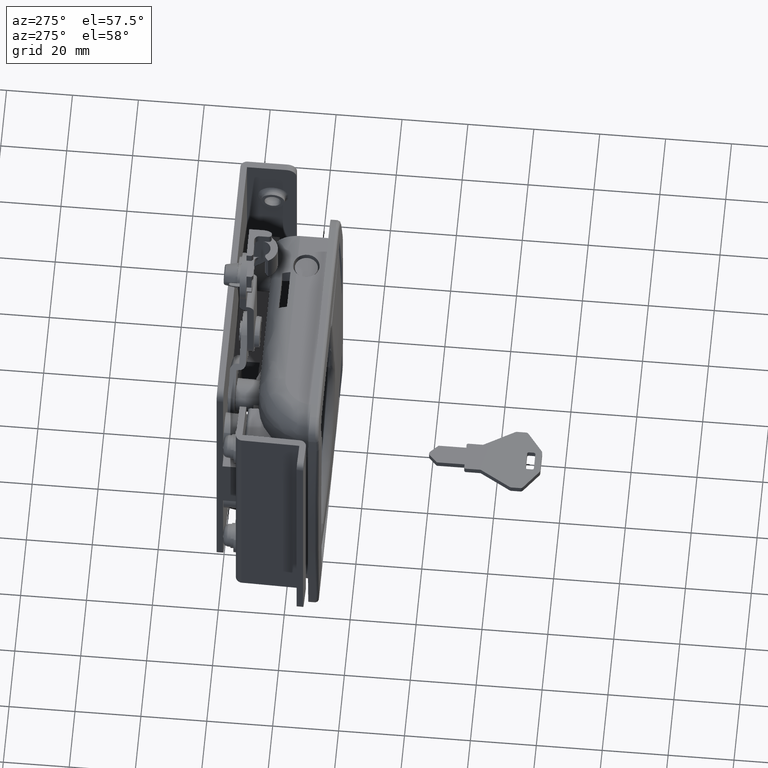
[diagram: clean part render]
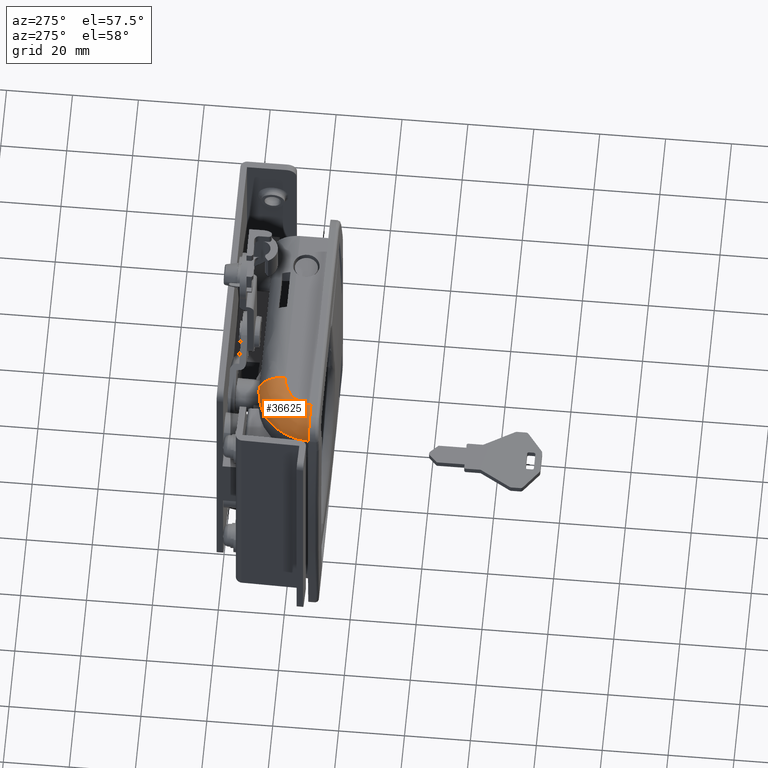
[diagram: same view with one face highlighted and labeled with its STEP entity id]
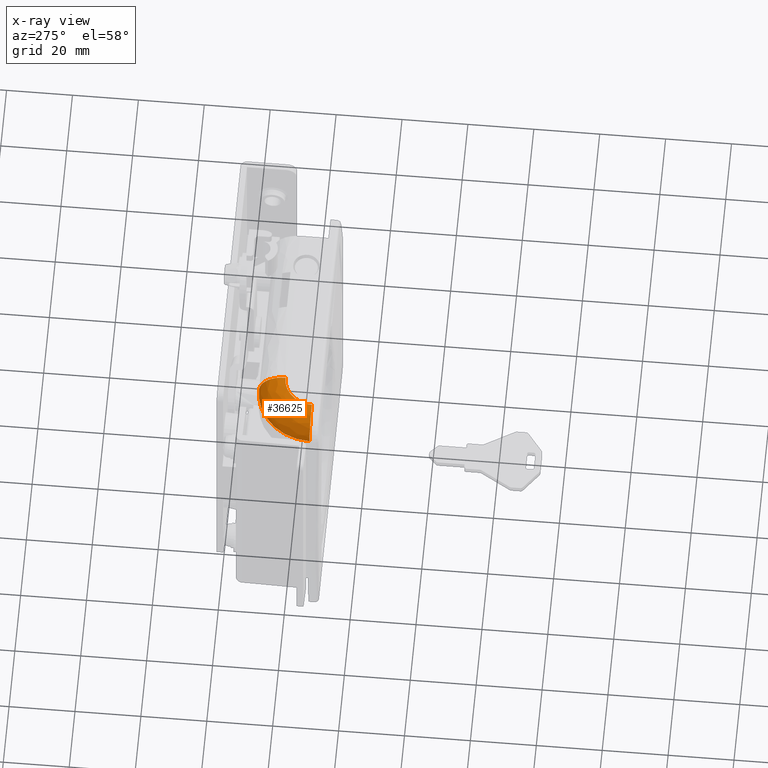
[diagram: x-ray of the same camera — body ghosted, the highlighted face saturated]
A machine part, auxiliary view. The second image highlights one B-rep face of the part: STEP entity #36625.
The next image is the same camera in x-ray: the body ghosted, the highlighted face saturated — about 0% of this face is hidden behind the body in this view.
In plain terms, the highlighted face is a freeform B-spline surface patch.
Its self-contained STEP definition (entity closure, byte-faithful):
#33400=CARTESIAN_POINT('',(18.002176511299400,-12.199999999999999,-37.499699999999997));
#33401=VERTEX_POINT('',#33400);
#36542=CARTESIAN_POINT('',(26.431872487682618,-29.686133000441220,-45.480334829208047));
#36543=CARTESIAN_POINT('',(26.983819367452057,-20.115204083155771,-45.480334829208061));
#36544=CARTESIAN_POINT('',(17.419817099258534,-20.776404742416876,-45.480334829208061));
#36545=CARTESIAN_POINT('',(35.593248329597230,-30.214461321969910,-46.119998836651511));
#36546=CARTESIAN_POINT('',(36.745049916405492,-10.241867004988595,-46.119998836651526));
#36547=CARTESIAN_POINT('',(16.786910116168045,-11.621659148851689,-46.119998836651547));
#36548=CARTESIAN_POINT('',(34.954645096536566,-30.177633646731216,-36.943401547480256));
#36549=CARTESIAN_POINT('',(36.064633186999771,-10.930098236630501,-36.943401547480271));
#36550=CARTESIAN_POINT('',(16.831027555797483,-12.259800213554126,-36.943401547480249));
#36558=(BOUNDED_SURFACE()B_SPLINE_SURFACE(2,2,((#36542,#36545,#36548),(#36543,#36546,#36549),(#36544,#36547,#36550)),.UNSPECIFIED.,.F.,.F.,.U.)B_SPLINE_SURFACE_WITH_KNOTS((3,3),(3,3),(0.0,30.687891932063561),(0.0,14.578994850109570),.UNSPECIFIED.)GEOMETRIC_REPRESENTATION_ITEM()RATIONAL_B_SPLINE_SURFACE(((0.840469576540666,0.551537011644464,0.840469587125350),(0.556942775530934,0.365479682605076,0.556942782544946),(0.844817011368596,0.554389906359803,0.844817022008031)))REPRESENTATION_ITEM('')SURFACE());
#36559=CARTESIAN_POINT('',(26.999954014661000,-29.0,-45.499699999999997));
#36560=VERTEX_POINT('',#36559);
#36561=CARTESIAN_POINT('',(35.000999999999998,-29.0,-37.499699999999997));
#36562=VERTEX_POINT('',#36561);
#36563=CARTESIAN_POINT('',(26.999954014661000,-29.0,-45.499699999999997));
#36564=CARTESIAN_POINT('',(27.556305145680479,-29.000000000000011,-45.499811511765543));
#36565=CARTESIAN_POINT('',(28.832712534684159,-28.999999999999989,-45.366325204204713));
#36566=CARTESIAN_POINT('',(30.480847142489878,-29.0,-44.776910314488788));
#36567=CARTESIAN_POINT('',(31.812888903703531,-29.000000000000028,-43.933178130476698));
#36568=CARTESIAN_POINT('',(32.771698974751288,-28.999999999999829,-43.085499715744703));
#36569=CARTESIAN_POINT('',(33.716149055971698,-29.000000000000028,-41.949350637978391));
#36570=CARTESIAN_POINT('',(34.415720472694382,-28.999999999999730,-40.640773033599480));
#36571=CARTESIAN_POINT('',(34.891953923834500,-29.000000000000650,-39.070546734157340));
#36572=CARTESIAN_POINT('',(35.001100306263261,-28.999999999999350,-38.088796687549163));
#36573=CARTESIAN_POINT('',(35.000999999999998,-29.0,-37.499699999999997));
#36574=B_SPLINE_CURVE_WITH_KNOTS('',3,(#36563,#36564,#36565,#36566,#36567,#36568,#36569,#36570,#36571,#36572,#36573),.UNSPECIFIED.,.F.,.U.,(4,1,1,1,1,1,1,1,4),(0.000000175947406,1.669076905886884,3.829125251766932,5.203720810539627,6.381816175945271,7.658205424986733,9.621896983292510,10.800104125494711,12.567372876165690),.UNSPECIFIED.);
#36575=EDGE_CURVE('',#36560,#36562,#36574,.T.);
#36576=ORIENTED_EDGE('',*,*,#36575,.F.);
#36577=CARTESIAN_POINT('',(18.002176511299400,-20.199999999999999,-45.499699999999997));
#36578=VERTEX_POINT('',#36577);
#36579=CARTESIAN_POINT('',(18.002176511299400,-20.199999999999999,-45.499699999999997));
#36580=CARTESIAN_POINT('',(18.546585947465140,-20.199955243800989,-45.499700000000033));
#36581=CARTESIAN_POINT('',(19.708012092603379,-20.305658258537800,-45.499699999999962));
#36582=CARTESIAN_POINT('',(21.354060363574700,-20.786640717926090,-45.499700000000047));
#36583=CARTESIAN_POINT('',(22.907451431436218,-21.591179308444950,-45.499699999999962));
#36584=CARTESIAN_POINT('',(24.026165268013401,-22.469203468703672,-45.499699999999997));
#36585=CARTESIAN_POINT('',(25.052772423621480,-23.548862325513340,-45.499699999999919));
#36586=CARTESIAN_POINT('',(25.992135903599969,-24.895509974188531,-45.499699999999820));
#36587=CARTESIAN_POINT('',(26.775071541894320,-26.826837318540139,-45.499700000000729));
#36588=CARTESIAN_POINT('',(26.983967421568529,-28.274276651241799,-45.499699999999237));
#36589=CARTESIAN_POINT('',(26.999954014661000,-29.0,-45.499699999999997));
#36590=B_SPLINE_CURVE_WITH_KNOTS('',3,(#36579,#36580,#36581,#36582,#36583,#36584,#36585,#36586,#36587,#36588,#36589),.UNSPECIFIED.,.F.,.U.,(4,1,1,1,1,1,1,1,4),(0.000000159257970,1.633237100372829,3.484309806059752,5.117593231585241,6.859781105235544,7.730808414763384,9.581845338842474,11.759555220256010,13.937235469414880),.UNSPECIFIED.);
#36591=EDGE_CURVE('',#36578,#36560,#36590,.T.);
#36592=ORIENTED_EDGE('',*,*,#36591,.F.);
#36593=CARTESIAN_POINT('',(18.002176511299400,-12.199999999999999,-37.499699999999997));
#36594=CARTESIAN_POINT('',(18.002176511299339,-12.199896944281001,-38.088756407980632));
#36595=CARTESIAN_POINT('',(18.002176511299449,-12.308960685885610,-39.070445917800242));
#36596=CARTESIAN_POINT('',(18.002176511299432,-12.794621232655031,-40.671960053587611));
#36597=CARTESIAN_POINT('',(18.002176511299350,-13.612686989396380,-42.180247192470837));
#36598=CARTESIAN_POINT('',(18.002176511299499,-14.771133941734821,-43.442535340276713));
#36599=CARTESIAN_POINT('',(18.002176511299620,-15.904517911366160,-44.282989445315003));
#36600=CARTESIAN_POINT('',(18.002176511298408,-16.917394401207030,-44.824380720552071));
#36601=CARTESIAN_POINT('',(18.002176511300441,-18.334825299492749,-45.341456961064679));
#36602=CARTESIAN_POINT('',(18.002176511298771,-19.447289850728829,-45.500020853372916));
#36603=CARTESIAN_POINT('',(18.002176511299400,-20.199999999999999,-45.499699999999997));
#36604=B_SPLINE_CURVE_WITH_KNOTS('',3,(#36593,#36594,#36595,#36596,#36597,#36598,#36599,#36600,#36601,#36602,#36603),.UNSPECIFIED.,.F.,.U.,(4,1,1,1,1,1,1,1,4),(0.000000175846724,1.767154847156753,2.945261563891304,5.006960870193020,6.872256861108856,8.050363716509612,9.228484285802097,10.308434713960031,12.566449463011400),.UNSPECIFIED.);
#36605=EDGE_CURVE('',#33401,#36578,#36604,.T.);
#36606=ORIENTED_EDGE('',*,*,#36605,.F.);
#36607=CARTESIAN_POINT('',(35.000999999999998,-29.0,-37.499699999999997));
#36608=CARTESIAN_POINT('',(34.989716415119752,-28.033800169929162,-37.499699999999962));
#36609=CARTESIAN_POINT('',(34.821819702191867,-26.310191931021500,-37.499700000000068));
#36610=CARTESIAN_POINT('',(34.224524880033300,-23.963911352113051,-37.499699999999983));
#36611=CARTESIAN_POINT('',(33.384149473837489,-21.842395164548769,-37.499700000000061));
#36612=CARTESIAN_POINT('',(32.300854256542387,-19.910912936892469,-37.499699999999997));
#36613=CARTESIAN_POINT('',(30.762487984107452,-17.866601566659121,-37.499699999999990));
#36614=CARTESIAN_POINT('',(29.026835139265369,-16.171986214339100,-37.499700000000047));
#36615=CARTESIAN_POINT('',(26.665136930790052,-14.481727055909040,-37.499699999999990));
#36616=CARTESIAN_POINT('',(24.049544400587578,-13.196288419248180,-37.499700000000011));
#36617=CARTESIAN_POINT('',(20.969993271002160,-12.371085607926970,-37.499700000000033));
#36618=CARTESIAN_POINT('',(18.968442458956648,-12.199927512694689,-37.499699999999983));
#36619=CARTESIAN_POINT('',(18.002176511299400,-12.199999999999999,-37.499699999999997));
#36620=B_SPLINE_CURVE_WITH_KNOTS('',3,(#36607,#36608,#36609,#36610,#36611,#36612,#36613,#36614,#36615,#36616,#36617,#36618,#36619),.UNSPECIFIED.,.F.,.U.,(4,1,1,1,1,1,1,1,1,1,4),(0.000000017969779,2.898804392465593,5.176501037204393,7.247110355139704,9.731851669740074,11.802437919530581,14.908308355532510,16.978901906185449,20.498955676204108,23.604885808420889,26.503696758411291),.UNSPECIFIED.);
#36621=EDGE_CURVE('',#36562,#33401,#36620,.T.);
#36622=ORIENTED_EDGE('',*,*,#36621,.F.);
#36623=EDGE_LOOP('',(#36576,#36592,#36606,#36622));
#36624=FACE_OUTER_BOUND('',#36623,.T.);
#36625=ADVANCED_FACE('',(#36624),#36558,.T.);